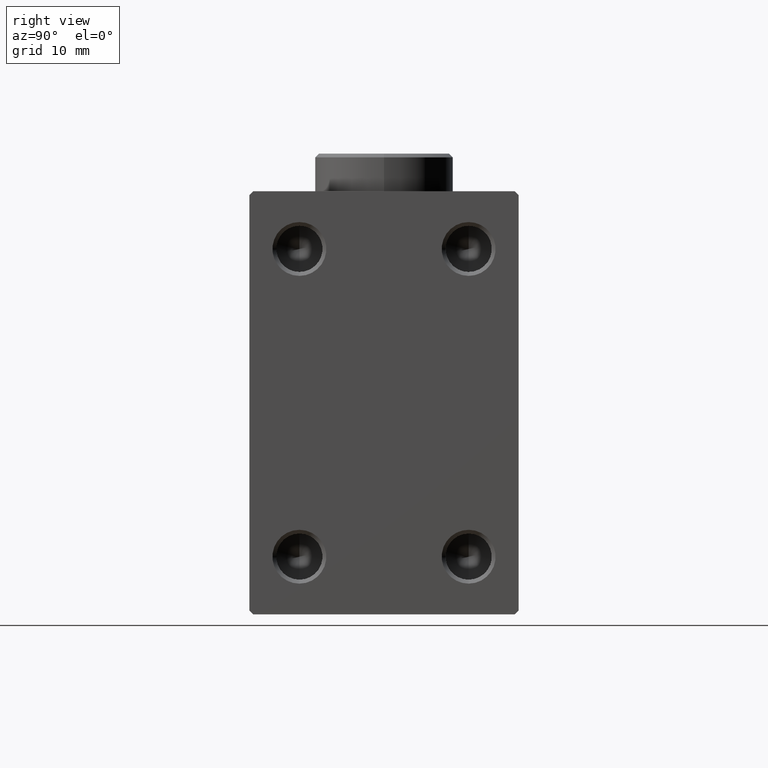
[diagram: clean part render]
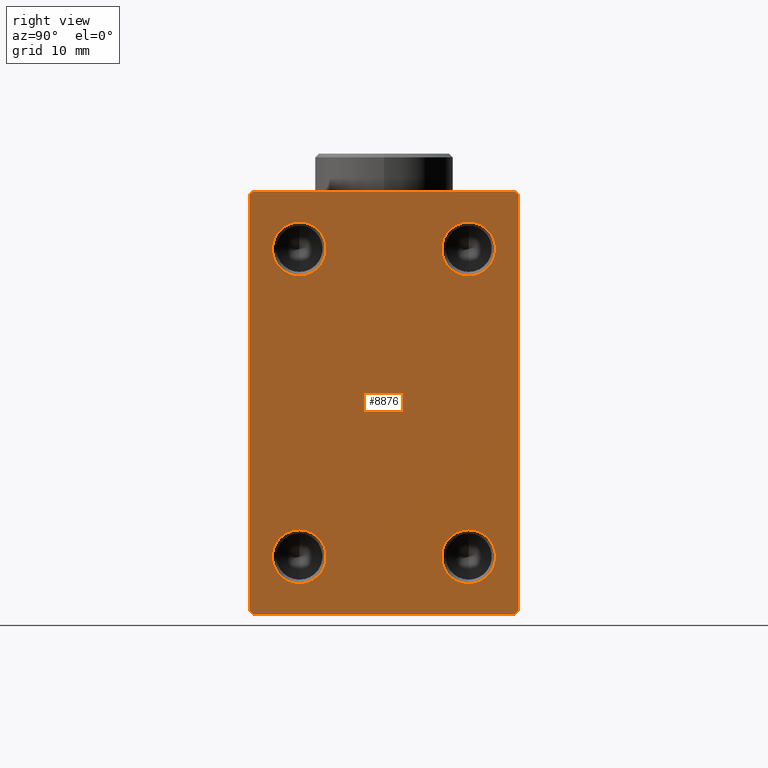
[diagram: same view with one face highlighted and labeled with its STEP entity id]
A machine part, right view. The second image highlights one B-rep face of the part: STEP entity #8876.
In plain terms, the highlighted planar face has unit normal (1, 0, 0).
Its self-contained STEP definition (entity closure, byte-faithful):
#298 = CARTESIAN_POINT ( 'NONE',  ( 56.00000000000000000, -11.00000000000000533, 20.00000000000000711 ) ) ;
#838 = CARTESIAN_POINT ( 'NONE',  ( 56.00000000000000000, 0.000000000000000000, 0.000000000000000000 ) ) ;
#1277 = VERTEX_POINT ( 'NONE', #36731 ) ;
#1344 = VERTEX_POINT ( 'NONE', #20573 ) ;
#1802 = CARTESIAN_POINT ( 'NONE',  ( 56.00000000000000000, -11.00000000000000533, 23.50000000000000711 ) ) ;
#2398 = ORIENTED_EDGE ( 'NONE', *, *, #43585, .T. ) ;
#3300 = DIRECTION ( 'NONE',  ( 0.000000000000000000, 0.000000000000000000, -1.000000000000000000 ) ) ;
#3542 = CARTESIAN_POINT ( 'NONE',  ( 56.00000000000000000, -17.49999999999999645, -27.50000000000000711 ) ) ;
#3645 = EDGE_LOOP ( 'NONE', ( #6080, #36794 ) ) ;
#3883 = AXIS2_PLACEMENT_3D ( 'NONE', #18837, #15149, #8497 ) ;
#4157 = CARTESIAN_POINT ( 'NONE',  ( 56.00000000000000000, -11.00000000000000533, -20.00000000000000000 ) ) ;
#4179 = AXIS2_PLACEMENT_3D ( 'NONE', #9837, #23868, #10506 ) ;
#4490 = DIRECTION ( 'NONE',  ( 1.000000000000000000, -0.000000000000000000, -0.000000000000000000 ) ) ;
#4626 = EDGE_CURVE ( 'NONE', #29740, #1344, #5383, .T. ) ;
#4683 = EDGE_CURVE ( 'NONE', #25783, #28368, #43590, .T. ) ;
#4782 = CARTESIAN_POINT ( 'NONE',  ( 56.00000000000000000, -17.49999999999999645, -26.99999999999998579 ) ) ;
#5383 = CIRCLE ( 'NONE', #3883, 3.500000000000003109 ) ;
#5395 = ORIENTED_EDGE ( 'NONE', *, *, #4626, .F. ) ;
#5497 = DIRECTION ( 'NONE',  ( 1.000000000000000000, -0.000000000000000000, -0.000000000000000000 ) ) ;
#5886 = CARTESIAN_POINT ( 'NONE',  ( 56.00000000000000000, 11.00000000000000178, -16.50000000000000000 ) ) ;
#6080 = ORIENTED_EDGE ( 'NONE', *, *, #44321, .F. ) ;
#6135 = ORIENTED_EDGE ( 'NONE', *, *, #13300, .T. ) ;
#6627 = LINE ( 'NONE', #38587, #31884 ) ;
#6867 = CARTESIAN_POINT ( 'NONE',  ( 56.00000000000000000, 22.24999999999992895, 22.25000000000008171 ) ) ;
#6948 = VECTOR ( 'NONE', #42451, 1000.000000000000114 ) ;
#7175 = DIRECTION ( 'NONE',  ( 0.000000000000000000, -1.000000000000000000, -1.982541115402065356E-16 ) ) ;
#7226 = LINE ( 'NONE', #3542, #19723 ) ;
#7626 = LINE ( 'NONE', #42383, #35750 ) ;
#7954 = EDGE_CURVE ( 'NONE', #11119, #10054, #42213, .T. ) ;
#8483 = VERTEX_POINT ( 'NONE', #37758 ) ;
#8497 = DIRECTION ( 'NONE',  ( 0.000000000000000000, 0.000000000000000000, -1.000000000000000000 ) ) ;
#8746 = CARTESIAN_POINT ( 'NONE',  ( 56.00000000000000000, 16.99999999999999289, -27.50000000000001066 ) ) ;
#8876 = ADVANCED_FACE ( 'NONE', ( #43431, #42739, #35832, #25911, #18096 ), #29379, .T. ) ;
#9164 = AXIS2_PLACEMENT_3D ( 'NONE', #838, #22477, #11437 ) ;
#9305 = VERTEX_POINT ( 'NONE', #14817 ) ;
#9425 = AXIS2_PLACEMENT_3D ( 'NONE', #4157, #32459, #11524 ) ;
#9491 = VERTEX_POINT ( 'NONE', #21615 ) ;
#9837 = CARTESIAN_POINT ( 'NONE',  ( 56.00000000000000000, 11.00000000000000178, 20.00000000000000711 ) ) ;
#10054 = VERTEX_POINT ( 'NONE', #30225 ) ;
#10427 = DIRECTION ( 'NONE',  ( 1.000000000000000000, -0.000000000000000000, -0.000000000000000000 ) ) ;
#10506 = DIRECTION ( 'NONE',  ( 0.000000000000000000, 0.000000000000000000, -1.000000000000000000 ) ) ;
#10891 = DIRECTION ( 'NONE',  ( 1.000000000000000000, -0.000000000000000000, -0.000000000000000000 ) ) ;
#10944 = DIRECTION ( 'NONE',  ( 0.000000000000000000, 0.000000000000000000, -1.000000000000000000 ) ) ;
#11119 = VERTEX_POINT ( 'NONE', #31539 ) ;
#11437 = DIRECTION ( 'NONE',  ( 0.000000000000000000, 0.000000000000000000, -1.000000000000000000 ) ) ;
#11524 = DIRECTION ( 'NONE',  ( 0.000000000000000000, 0.000000000000000000, -1.000000000000000000 ) ) ;
#11959 = EDGE_CURVE ( 'NONE', #41479, #9305, #18996, .T. ) ;
#13174 = VERTEX_POINT ( 'NONE', #45459 ) ;
#13300 = EDGE_CURVE ( 'NONE', #10054, #41479, #19192, .T. ) ;
#14686 = EDGE_LOOP ( 'NONE', ( #18646, #23255, #6135, #30966, #42179, #25536, #22743, #2398 ) ) ;
#14817 = CARTESIAN_POINT ( 'NONE',  ( 56.00000000000000000, -16.99999999999997513, -27.50000000000000711 ) ) ;
#15149 = DIRECTION ( 'NONE',  ( 1.000000000000000000, -0.000000000000000000, -0.000000000000000000 ) ) ;
#15410 = AXIS2_PLACEMENT_3D ( 'NONE', #42244, #4490, #10944 ) ;
#15868 = VERTEX_POINT ( 'NONE', #17234 ) ;
#17234 = CARTESIAN_POINT ( 'NONE',  ( 56.00000000000000000, 16.99999999999998579, 27.49999999999999289 ) ) ;
#17597 = CIRCLE ( 'NONE', #15410, 3.500000000000003109 ) ;
#18096 = FACE_OUTER_BOUND ( 'NONE', #14686, .T. ) ;
#18442 = EDGE_CURVE ( 'NONE', #15868, #11119, #7626, .T. ) ;
#18646 = ORIENTED_EDGE ( 'NONE', *, *, #18442, .T. ) ;
#18837 = CARTESIAN_POINT ( 'NONE',  ( 56.00000000000000000, 11.00000000000000178, -20.00000000000000000 ) ) ;
#18996 = LINE ( 'NONE', #23117, #40852 ) ;
#19107 = EDGE_CURVE ( 'NONE', #40337, #28885, #40232, .T. ) ;
#19192 = LINE ( 'NONE', #36474, #37202 ) ;
#19497 = ORIENTED_EDGE ( 'NONE', *, *, #19107, .F. ) ;
#19673 = DIRECTION ( 'NONE',  ( -0.000000000000000000, 0.7071067811865474617, -0.7071067811865474617 ) ) ;
#19723 = VECTOR ( 'NONE', #35517, 1000.000000000000000 ) ;
#19836 = CARTESIAN_POINT ( 'NONE',  ( 56.00000000000000000, -11.00000000000000533, 16.50000000000000711 ) ) ;
#20165 = ORIENTED_EDGE ( 'NONE', *, *, #29769, .F. ) ;
#20185 = ORIENTED_EDGE ( 'NONE', *, *, #41970, .F. ) ;
#20427 = AXIS2_PLACEMENT_3D ( 'NONE', #38066, #10427, #3300 ) ;
#20573 = CARTESIAN_POINT ( 'NONE',  ( 56.00000000000000000, 11.00000000000000178, -23.50000000000000000 ) ) ;
#21125 = LINE ( 'NONE', #6867, #23339 ) ;
#21493 = CARTESIAN_POINT ( 'NONE',  ( 56.00000000000000000, 11.00000000000000178, 23.50000000000000711 ) ) ;
#21615 = CARTESIAN_POINT ( 'NONE',  ( 56.00000000000000000, -11.00000000000000533, -23.50000000000000000 ) ) ;
#22423 = DIRECTION ( 'NONE',  ( 0.000000000000000000, 0.000000000000000000, -1.000000000000000000 ) ) ;
#22477 = DIRECTION ( 'NONE',  ( 1.000000000000000000, 0.000000000000000000, 0.000000000000000000 ) ) ;
#22743 = ORIENTED_EDGE ( 'NONE', *, *, #32081, .T. ) ;
#23117 = CARTESIAN_POINT ( 'NONE',  ( 56.00000000000000000, -22.24999999999999289, -22.24999999999999289 ) ) ;
#23200 = DIRECTION ( 'NONE',  ( 0.000000000000000000, 0.000000000000000000, -1.000000000000000000 ) ) ;
#23255 = ORIENTED_EDGE ( 'NONE', *, *, #7954, .T. ) ;
#23274 = EDGE_CURVE ( 'NONE', #9305, #24921, #7226, .T. ) ;
#23339 = VECTOR ( 'NONE', #38395, 1000.000000000000114 ) ;
#23356 = EDGE_LOOP ( 'NONE', ( #20165, #19497 ) ) ;
#23721 = AXIS2_PLACEMENT_3D ( 'NONE', #43697, #5497, #23200 ) ;
#23868 = DIRECTION ( 'NONE',  ( 1.000000000000000000, -0.000000000000000000, -0.000000000000000000 ) ) ;
#24921 = VERTEX_POINT ( 'NONE', #8746 ) ;
#24956 = DIRECTION ( 'NONE',  ( 0.000000000000000000, -1.261617073437677752E-16, 1.000000000000000000 ) ) ;
#25536 = ORIENTED_EDGE ( 'NONE', *, *, #28565, .T. ) ;
#25783 = VERTEX_POINT ( 'NONE', #19836 ) ;
#25911 = FACE_BOUND ( 'NONE', #44283, .T. ) ;
#26036 = AXIS2_PLACEMENT_3D ( 'NONE', #30719, #26357, #30492 ) ;
#26149 = EDGE_CURVE ( 'NONE', #9491, #1277, #17597, .T. ) ;
#26357 = DIRECTION ( 'NONE',  ( 1.000000000000000000, -0.000000000000000000, -0.000000000000000000 ) ) ;
#27316 = CARTESIAN_POINT ( 'NONE',  ( 56.00000000000000000, -22.24999999999998579, 22.24999999999998579 ) ) ;
#28368 = VERTEX_POINT ( 'NONE', #1802 ) ;
#28398 = CARTESIAN_POINT ( 'NONE',  ( 56.00000000000000000, 17.50000000000000711, -27.50000000000001066 ) ) ;
#28565 = EDGE_CURVE ( 'NONE', #24921, #13174, #6627, .T. ) ;
#28885 = VERTEX_POINT ( 'NONE', #21493 ) ;
#29379 = PLANE ( 'NONE',  #9164 ) ;
#29740 = VERTEX_POINT ( 'NONE', #5886 ) ;
#29769 = EDGE_CURVE ( 'NONE', #28885, #40337, #39985, .T. ) ;
#30225 = CARTESIAN_POINT ( 'NONE',  ( 56.00000000000000000, -17.49999999999999645, 26.99999999999997868 ) ) ;
#30492 = DIRECTION ( 'NONE',  ( 0.000000000000000000, 0.000000000000000000, -1.000000000000000000 ) ) ;
#30719 = CARTESIAN_POINT ( 'NONE',  ( 56.00000000000000000, 11.00000000000000178, 20.00000000000000711 ) ) ;
#30775 = AXIS2_PLACEMENT_3D ( 'NONE', #298, #10891, #38740 ) ;
#30966 = ORIENTED_EDGE ( 'NONE', *, *, #11959, .T. ) ;
#31539 = CARTESIAN_POINT ( 'NONE',  ( 56.00000000000000000, -16.99999999999998579, 27.49999999999998579 ) ) ;
#31864 = LINE ( 'NONE', #28398, #31950 ) ;
#31884 = VECTOR ( 'NONE', #34910, 1000.000000000000000 ) ;
#31950 = VECTOR ( 'NONE', #24956, 1000.000000000000000 ) ;
#32081 = EDGE_CURVE ( 'NONE', #13174, #8483, #31864, .T. ) ;
#32459 = DIRECTION ( 'NONE',  ( 1.000000000000000000, -0.000000000000000000, -0.000000000000000000 ) ) ;
#33375 = ORIENTED_EDGE ( 'NONE', *, *, #4683, .F. ) ;
#34386 = CIRCLE ( 'NONE', #20427, 3.500000000000003109 ) ;
#34910 = DIRECTION ( 'NONE',  ( -0.000000000000000000, 0.7071067811865524577, 0.7071067811865426878 ) ) ;
#35517 = DIRECTION ( 'NONE',  ( 0.000000000000000000, 1.000000000000000000, -9.912705577010325549E-17 ) ) ;
#35750 = VECTOR ( 'NONE', #7175, 1000.000000000000000 ) ;
#35832 = FACE_BOUND ( 'NONE', #3645, .T. ) ;
#35867 = CIRCLE ( 'NONE', #9425, 3.500000000000003109 ) ;
#36474 = CARTESIAN_POINT ( 'NONE',  ( 56.00000000000000000, -17.49999999999999645, 27.49999999999998579 ) ) ;
#36731 = CARTESIAN_POINT ( 'NONE',  ( 56.00000000000000000, -11.00000000000000533, -16.50000000000000000 ) ) ;
#36794 = ORIENTED_EDGE ( 'NONE', *, *, #26149, .F. ) ;
#36960 = ORIENTED_EDGE ( 'NONE', *, *, #43830, .F. ) ;
#37202 = VECTOR ( 'NONE', #22423, 1000.000000000000000 ) ;
#37758 = CARTESIAN_POINT ( 'NONE',  ( 56.00000000000000000, 17.50000000000000000, 26.99999999999998224 ) ) ;
#38066 = CARTESIAN_POINT ( 'NONE',  ( 56.00000000000000000, 11.00000000000000178, -20.00000000000000000 ) ) ;
#38395 = DIRECTION ( 'NONE',  ( -0.000000000000000000, -0.7071067811865500152, 0.7071067811865451302 ) ) ;
#38587 = CARTESIAN_POINT ( 'NONE',  ( 56.00000000000000000, 22.24999999999988631, -22.25000000000019185 ) ) ;
#38665 = CARTESIAN_POINT ( 'NONE',  ( 56.00000000000000000, 11.00000000000000178, 16.50000000000000711 ) ) ;
#38740 = DIRECTION ( 'NONE',  ( 0.000000000000000000, 0.000000000000000000, -1.000000000000000000 ) ) ;
#39985 = CIRCLE ( 'NONE', #26036, 3.500000000000003109 ) ;
#40232 = CIRCLE ( 'NONE', #4179, 3.500000000000003109 ) ;
#40337 = VERTEX_POINT ( 'NONE', #38665 ) ;
#40852 = VECTOR ( 'NONE', #19673, 1000.000000000000114 ) ;
#41479 = VERTEX_POINT ( 'NONE', #4782 ) ;
#41970 = EDGE_CURVE ( 'NONE', #28368, #25783, #43270, .T. ) ;
#42179 = ORIENTED_EDGE ( 'NONE', *, *, #23274, .T. ) ;
#42213 = LINE ( 'NONE', #27316, #6948 ) ;
#42244 = CARTESIAN_POINT ( 'NONE',  ( 56.00000000000000000, -11.00000000000000533, -20.00000000000000000 ) ) ;
#42383 = CARTESIAN_POINT ( 'NONE',  ( 56.00000000000000000, 17.50000000000000000, 27.49999999999999289 ) ) ;
#42451 = DIRECTION ( 'NONE',  ( 0.000000000000000000, -0.7071067811865474617, -0.7071067811865474617 ) ) ;
#42620 = EDGE_LOOP ( 'NONE', ( #20185, #33375 ) ) ;
#42739 = FACE_BOUND ( 'NONE', #42620, .T. ) ;
#43270 = CIRCLE ( 'NONE', #30775, 3.500000000000003109 ) ;
#43431 = FACE_BOUND ( 'NONE', #23356, .T. ) ;
#43585 = EDGE_CURVE ( 'NONE', #8483, #15868, #21125, .T. ) ;
#43590 = CIRCLE ( 'NONE', #23721, 3.500000000000003109 ) ;
#43697 = CARTESIAN_POINT ( 'NONE',  ( 56.00000000000000000, -11.00000000000000533, 20.00000000000000711 ) ) ;
#43830 = EDGE_CURVE ( 'NONE', #1344, #29740, #34386, .T. ) ;
#44283 = EDGE_LOOP ( 'NONE', ( #5395, #36960 ) ) ;
#44321 = EDGE_CURVE ( 'NONE', #1277, #9491, #35867, .T. ) ;
#45459 = CARTESIAN_POINT ( 'NONE',  ( 56.00000000000000000, 17.50000000000000711, -27.00000000000000355 ) ) ;